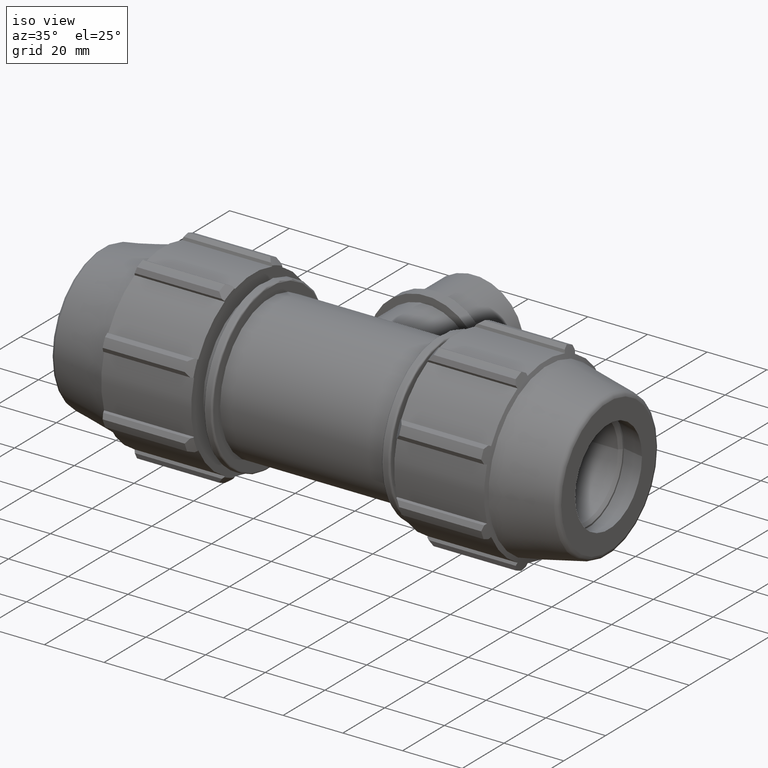
[diagram: clean part render]
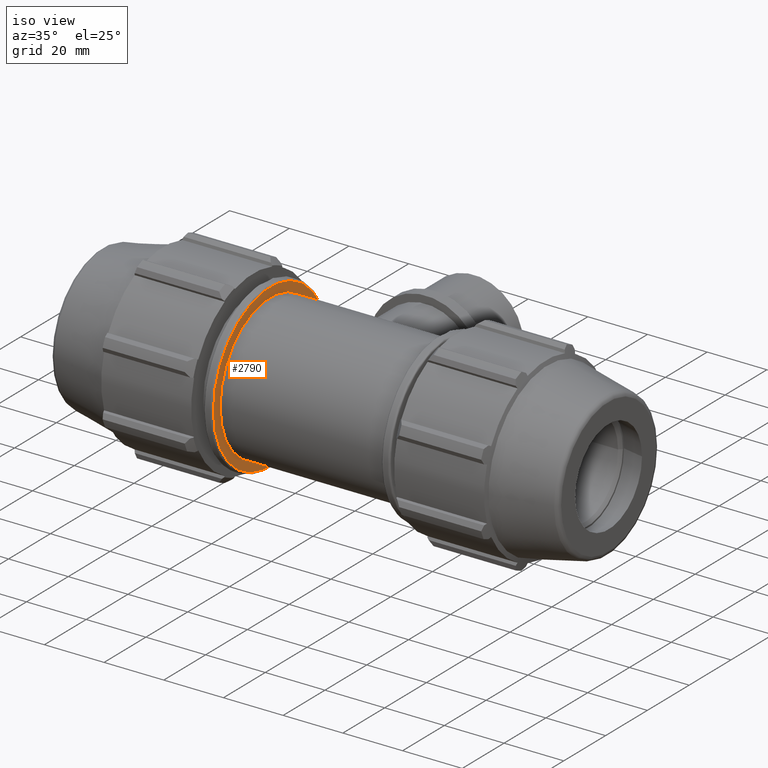
[diagram: same view with one face highlighted and labeled with its STEP entity id]
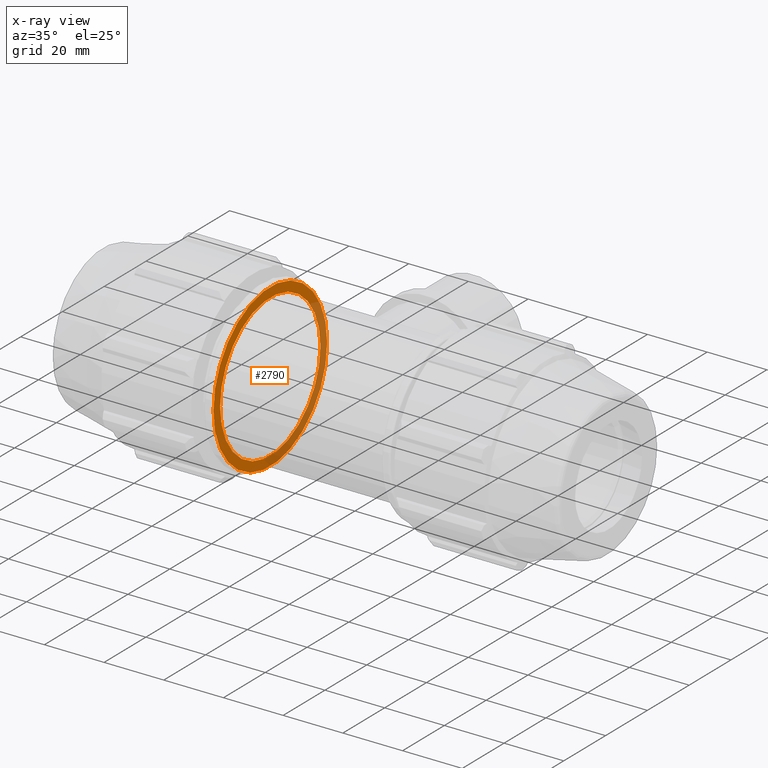
[diagram: x-ray of the same camera — body ghosted, the highlighted face saturated]
A machine part, iso view. The second image highlights one B-rep face of the part: STEP entity #2790.
The next image is the same camera in x-ray: the body ghosted, the highlighted face saturated — about 36% of this face is hidden behind the body in this view.
In plain terms, the highlighted planar face has unit normal (-1, 0, 0).
Its self-contained STEP definition (entity closure, byte-faithful):
#47=PLANE('',#3002);
#216=CIRCLE('',#3001,27.2);
#217=CIRCLE('',#3003,24.);
#710=FACE_BOUND('',#964,.T.);
#795=FACE_OUTER_BOUND('',#963,.T.);
#963=EDGE_LOOP('',(#2044));
#964=EDGE_LOOP('',(#2045));
#1237=VERTEX_POINT('',#4434);
#1238=VERTEX_POINT('',#4437);
#1554=EDGE_CURVE('',#1237,#1237,#216,.T.);
#1555=EDGE_CURVE('',#1238,#1238,#217,.T.);
#2044=ORIENTED_EDGE('',*,*,#1554,.F.);
#2045=ORIENTED_EDGE('',*,*,#1555,.F.);
#2790=ADVANCED_FACE('',(#795,#710),#47,.F.);
#3001=AXIS2_PLACEMENT_3D('',#4435,#3468,#3469);
#3002=AXIS2_PLACEMENT_3D('',#4436,#3470,#3471);
#3003=AXIS2_PLACEMENT_3D('',#4438,#3472,#3473);
#3468=DIRECTION('center_axis',(-1.,4.75609664075873E-16,0.));
#3469=DIRECTION('ref_axis',(-4.75609664075873E-16,-1.,1.83697019872103E-16));
#3470=DIRECTION('center_axis',(-1.,4.75609664075873E-16,0.));
#3471=DIRECTION('ref_axis',(0.,0.,1.));
#3472=DIRECTION('center_axis',(1.,-4.75609664075873E-16,0.));
#3473=DIRECTION('ref_axis',(0.,0.,-1.));
#4434=CARTESIAN_POINT('',(-28.3333333333333,27.2,-8.327598234202E-15));
#4435=CARTESIAN_POINT('Origin',(-28.3333333333334,1.34756071488164E-14,
0.));
#4436=CARTESIAN_POINT('Origin',(-28.3333333333333,27.84,0.));
#4437=CARTESIAN_POINT('',(-28.3333333333333,24.,0.));
#4438=CARTESIAN_POINT('Origin',(-28.3333333333334,1.34756071488164E-14,
0.));